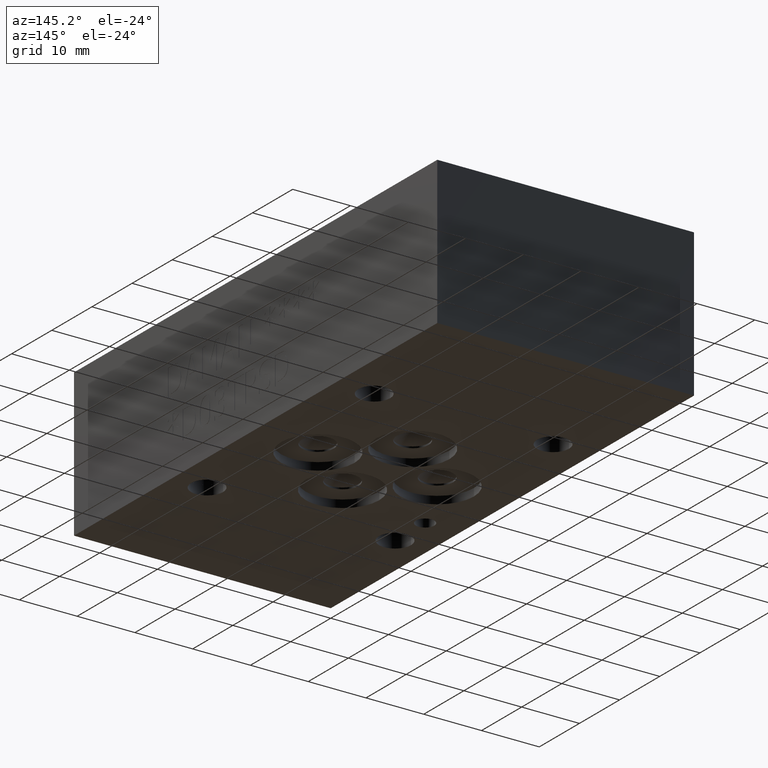
[diagram: clean part render]
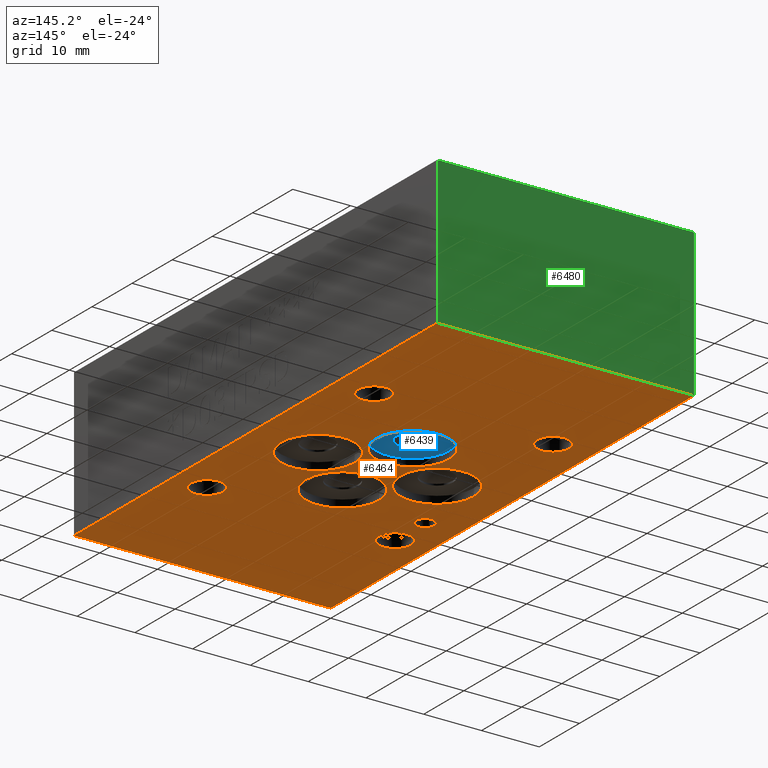
[diagram: same view with three faces highlighted in distinct colors, each labeled with its STEP entity id]
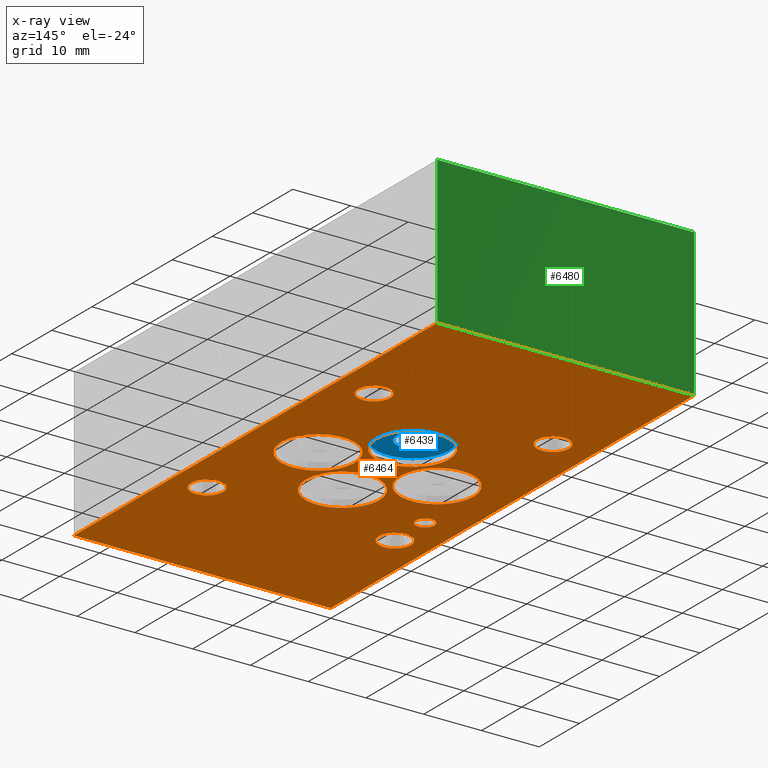
[diagram: x-ray of the same camera — body ghosted, the three highlighted faces saturated]
A machine part, auxiliary view with three faces highlighted in distinct colors.
The next image is the same camera in x-ray (body ghosted, the three faces saturated) — at least one of them is partly hidden behind the body in this view.
Their STEP definitions:

[orange] entity #6464 — the highlighted planar face has unit normal (0, 0, 1).
#28=CIRCLE('',#6707,6.35);
#31=CIRCLE('',#6712,6.35);
#34=CIRCLE('',#6717,6.35);
#37=CIRCLE('',#6722,6.35);
#41=CIRCLE('',#6729,1.5875);
#46=CIRCLE('',#6739,2.7686);
#49=CIRCLE('',#6744,2.7686);
#52=CIRCLE('',#6749,2.7686);
#55=CIRCLE('',#6754,2.7686);
#58=CIRCLE('',#6763,2.7686);
#59=CIRCLE('',#6764,2.7686);
#60=CIRCLE('',#6765,2.7686);
#61=CIRCLE('',#6766,2.7686);
#126=FACE_BOUND('',#1028,.T.);
#127=FACE_BOUND('',#1029,.T.);
#128=FACE_BOUND('',#1030,.T.);
#129=FACE_BOUND('',#1031,.T.);
#130=FACE_BOUND('',#1032,.T.);
#131=FACE_BOUND('',#1033,.T.);
#132=FACE_BOUND('',#1034,.T.);
#133=FACE_BOUND('',#1035,.T.);
#134=FACE_BOUND('',#1036,.T.);
#353=PLANE('',#6762);
#669=FACE_OUTER_BOUND('',#1027,.T.);
#1027=EDGE_LOOP('',(#5685,#5686,#5687,#5688));
#1028=EDGE_LOOP('',(#5689));
#1029=EDGE_LOOP('',(#5690));
#1030=EDGE_LOOP('',(#5691));
#1031=EDGE_LOOP('',(#5692));
#1032=EDGE_LOOP('',(#5693));
#1033=EDGE_LOOP('',(#5694,#5695));
#1034=EDGE_LOOP('',(#5696,#5697));
#1035=EDGE_LOOP('',(#5698,#5699));
#1036=EDGE_LOOP('',(#5700,#5701));
#1310=LINE('',#9779,#1980);
#1713=LINE('',#10893,#2383);
#1714=LINE('',#10895,#2384);
#1715=LINE('',#10896,#2385);
#1980=VECTOR('',#7181,10.);
#2383=VECTOR('',#7974,10.);
#2384=VECTOR('',#7975,10.);
#2385=VECTOR('',#7976,10.);
#2825=VERTEX_POINT('',#9777);
#2826=VERTEX_POINT('',#9778);
#3091=VERTEX_POINT('',#10691);
#3094=VERTEX_POINT('',#10700);
#3097=VERTEX_POINT('',#10709);
#3100=VERTEX_POINT('',#10718);
#3105=VERTEX_POINT('',#10732);
#3111=VERTEX_POINT('',#10751);
#3114=VERTEX_POINT('',#10757);
#3116=VERTEX_POINT('',#10783);
#3119=VERTEX_POINT('',#10789);
#3121=VERTEX_POINT('',#10815);
#3124=VERTEX_POINT('',#10821);
#3126=VERTEX_POINT('',#10847);
#3129=VERTEX_POINT('',#10853);
#3134=VERTEX_POINT('',#10892);
#3135=VERTEX_POINT('',#10894);
#3544=EDGE_CURVE('',#2825,#2826,#1310,.T.);
#3941=EDGE_CURVE('',#3091,#3091,#28,.T.);
#3945=EDGE_CURVE('',#3094,#3094,#31,.T.);
#3949=EDGE_CURVE('',#3097,#3097,#34,.T.);
#3953=EDGE_CURVE('',#3100,#3100,#37,.T.);
#3959=EDGE_CURVE('',#3105,#3105,#41,.T.);
#3971=EDGE_CURVE('',#3111,#3114,#46,.T.);
#3977=EDGE_CURVE('',#3116,#3119,#49,.T.);
#3983=EDGE_CURVE('',#3121,#3124,#52,.T.);
#3989=EDGE_CURVE('',#3126,#3129,#55,.T.);
#3997=EDGE_CURVE('',#3134,#2825,#1713,.T.);
#3998=EDGE_CURVE('',#3135,#3134,#1714,.T.);
#3999=EDGE_CURVE('',#2826,#3135,#1715,.T.);
#4000=EDGE_CURVE('',#3119,#3116,#58,.T.);
#4001=EDGE_CURVE('',#3129,#3126,#59,.T.);
#4002=EDGE_CURVE('',#3114,#3111,#60,.T.);
#4003=EDGE_CURVE('',#3124,#3121,#61,.T.);
#5685=ORIENTED_EDGE('',*,*,#3997,.F.);
#5686=ORIENTED_EDGE('',*,*,#3998,.F.);
#5687=ORIENTED_EDGE('',*,*,#3999,.F.);
#5688=ORIENTED_EDGE('',*,*,#3544,.F.);
#5689=ORIENTED_EDGE('',*,*,#3941,.T.);
#5690=ORIENTED_EDGE('',*,*,#3945,.T.);
#5691=ORIENTED_EDGE('',*,*,#3949,.T.);
#5692=ORIENTED_EDGE('',*,*,#3953,.T.);
#5693=ORIENTED_EDGE('',*,*,#3959,.T.);
#5694=ORIENTED_EDGE('',*,*,#3977,.T.);
#5695=ORIENTED_EDGE('',*,*,#4000,.T.);
#5696=ORIENTED_EDGE('',*,*,#3989,.T.);
#5697=ORIENTED_EDGE('',*,*,#4001,.T.);
#5698=ORIENTED_EDGE('',*,*,#3971,.T.);
#5699=ORIENTED_EDGE('',*,*,#4002,.T.);
#5700=ORIENTED_EDGE('',*,*,#3983,.T.);
#5701=ORIENTED_EDGE('',*,*,#4003,.T.);
#6464=ADVANCED_FACE('',(#669,#126,#127,#128,#129,#130,#131,#132,#133,#134),
#353,.F.);
#6707=AXIS2_PLACEMENT_3D('',#10692,#7840,#7841);
#6712=AXIS2_PLACEMENT_3D('',#10701,#7851,#7852);
#6717=AXIS2_PLACEMENT_3D('',#10710,#7862,#7863);
#6722=AXIS2_PLACEMENT_3D('',#10719,#7873,#7874);
#6729=AXIS2_PLACEMENT_3D('',#10733,#7889,#7890);
#6739=AXIS2_PLACEMENT_3D('',#10759,#7916,#7917);
#6744=AXIS2_PLACEMENT_3D('',#10791,#7928,#7929);
#6749=AXIS2_PLACEMENT_3D('',#10823,#7940,#7941);
#6754=AXIS2_PLACEMENT_3D('',#10855,#7952,#7953);
#6762=AXIS2_PLACEMENT_3D('',#10891,#7972,#7973);
#6763=AXIS2_PLACEMENT_3D('',#10897,#7977,#7978);
#6764=AXIS2_PLACEMENT_3D('',#10898,#7979,#7980);
#6765=AXIS2_PLACEMENT_3D('',#10899,#7981,#7982);
#6766=AXIS2_PLACEMENT_3D('',#10900,#7983,#7984);
#7181=DIRECTION('',(0.,1.,0.));
#7840=DIRECTION('center_axis',(0.,0.,1.));
#7841=DIRECTION('ref_axis',(1.,0.,0.));
#7851=DIRECTION('center_axis',(0.,0.,1.));
#7852=DIRECTION('ref_axis',(1.,0.,0.));
#7862=DIRECTION('center_axis',(0.,0.,1.));
#7863=DIRECTION('ref_axis',(1.,0.,0.));
#7873=DIRECTION('center_axis',(0.,0.,1.));
#7874=DIRECTION('ref_axis',(1.,0.,0.));
#7889=DIRECTION('center_axis',(0.,0.,1.));
#7890=DIRECTION('ref_axis',(1.,0.,0.));
#7916=DIRECTION('center_axis',(0.,0.,1.));
#7917=DIRECTION('ref_axis',(1.,0.,0.));
#7928=DIRECTION('center_axis',(0.,0.,1.));
#7929=DIRECTION('ref_axis',(1.,0.,0.));
#7940=DIRECTION('center_axis',(0.,0.,1.));
#7941=DIRECTION('ref_axis',(1.,0.,0.));
#7952=DIRECTION('center_axis',(0.,0.,1.));
#7953=DIRECTION('ref_axis',(1.,0.,0.));
#7972=DIRECTION('center_axis',(0.,0.,1.));
#7973=DIRECTION('ref_axis',(1.,0.,0.));
#7974=DIRECTION('',(1.,0.,0.));
#7975=DIRECTION('',(0.,-1.,0.));
#7976=DIRECTION('',(-1.,0.,0.));
#7977=DIRECTION('center_axis',(0.,0.,1.));
#7978=DIRECTION('ref_axis',(1.,0.,0.));
#7979=DIRECTION('center_axis',(0.,0.,1.));
#7980=DIRECTION('ref_axis',(1.,0.,0.));
#7981=DIRECTION('center_axis',(0.,0.,1.));
#7982=DIRECTION('ref_axis',(1.,0.,0.));
#7983=DIRECTION('center_axis',(0.,0.,1.));
#7984=DIRECTION('ref_axis',(1.,0.,0.));
#9777=CARTESIAN_POINT('',(44.45,0.,0.));
#9778=CARTESIAN_POINT('',(44.45,90.5002,0.));
#9779=CARTESIAN_POINT('',(44.45,0.,0.));
#10691=CARTESIAN_POINT('',(15.875,52.39385,0.));
#10692=CARTESIAN_POINT('Origin',(22.225,52.39385,0.));
#10700=CARTESIAN_POINT('',(5.5626,43.65625,0.));
#10701=CARTESIAN_POINT('Origin',(11.9126,43.65625,0.));
#10709=CARTESIAN_POINT('',(26.2128,43.65625,0.));
#10710=CARTESIAN_POINT('Origin',(32.5628,43.65625,0.));
#10718=CARTESIAN_POINT('',(15.875,34.91865,0.));
#10719=CARTESIAN_POINT('Origin',(22.225,34.91865,0.));
#10732=CARTESIAN_POINT('',(4.3815,32.09925,0.));
#10733=CARTESIAN_POINT('Origin',(5.969,32.09925,0.));
#10751=CARTESIAN_POINT('',(35.7378045513047,24.611012491649,0.));
#10757=CARTESIAN_POINT('',(41.2749954486953,24.607837508351,0.));
#10759=CARTESIAN_POINT('Origin',(38.5064,24.60625,0.));
#10783=CARTESIAN_POINT('',(3.98780455130474,65.098612491649,0.));
#10789=CARTESIAN_POINT('',(9.52499544869526,65.095437508351,0.));
#10791=CARTESIAN_POINT('Origin',(6.7564,65.09385,0.));
#10815=CARTESIAN_POINT('',(34.9504045513047,65.098612491649,0.));
#10821=CARTESIAN_POINT('',(40.4875954486953,65.095437508351,0.));
#10823=CARTESIAN_POINT('Origin',(37.719,65.09385,0.));
#10847=CARTESIAN_POINT('',(3.20040455130474,24.611012491649,0.));
#10853=CARTESIAN_POINT('',(8.73759544869526,24.607837508351,0.));
#10855=CARTESIAN_POINT('Origin',(5.969,24.60625,0.));
#10891=CARTESIAN_POINT('Origin',(22.225,45.2501,0.));
#10892=CARTESIAN_POINT('',(0.,0.,0.));
#10893=CARTESIAN_POINT('',(0.,0.,0.));
#10894=CARTESIAN_POINT('',(0.,90.5002,0.));
#10895=CARTESIAN_POINT('',(0.,90.5002,0.));
#10896=CARTESIAN_POINT('',(44.45,90.5002,0.));
#10897=CARTESIAN_POINT('Origin',(6.7564,65.1002,0.));
#10898=CARTESIAN_POINT('Origin',(5.969,24.6126,0.));
#10899=CARTESIAN_POINT('Origin',(38.5064,24.6126,0.));
#10900=CARTESIAN_POINT('Origin',(37.719,65.1002,0.));

[blue] entity #6439 — the highlighted planar face has unit normal (0, 0, -1).
#29=CIRCLE('',#6708,6.35);
#30=CIRCLE('',#6710,2.7686);
#122=FACE_BOUND('',#999,.T.);
#349=PLANE('',#6709);
#644=FACE_OUTER_BOUND('',#998,.T.);
#998=EDGE_LOOP('',(#5602));
#999=EDGE_LOOP('',(#5603));
#3092=VERTEX_POINT('',#10693);
#3093=VERTEX_POINT('',#10697);
#3943=EDGE_CURVE('',#3092,#3092,#29,.T.);
#3944=EDGE_CURVE('',#3093,#3093,#30,.T.);
#5602=ORIENTED_EDGE('',*,*,#3943,.T.);
#5603=ORIENTED_EDGE('',*,*,#3944,.F.);
#6439=ADVANCED_FACE('',(#644,#122),#349,.T.);
#6708=AXIS2_PLACEMENT_3D('',#10695,#7843,#7844);
#6709=AXIS2_PLACEMENT_3D('',#10696,#7845,#7846);
#6710=AXIS2_PLACEMENT_3D('',#10698,#7847,#7848);
#7843=DIRECTION('center_axis',(0.,0.,-1.));
#7844=DIRECTION('ref_axis',(1.,0.,0.));
#7845=DIRECTION('center_axis',(0.,0.,-1.));
#7846=DIRECTION('ref_axis',(1.,0.,0.));
#7847=DIRECTION('center_axis',(0.,0.,-1.));
#7848=DIRECTION('ref_axis',(1.,0.,0.));
#10693=CARTESIAN_POINT('',(15.875,52.39385,1.3208));
#10695=CARTESIAN_POINT('Origin',(22.225,52.39385,1.3208));
#10696=CARTESIAN_POINT('Origin',(22.225,52.39385,1.3208));
#10697=CARTESIAN_POINT('',(19.4564,52.39385,1.3208));
#10698=CARTESIAN_POINT('Origin',(22.225,52.39385,1.3208));

[green] entity #6480 — the highlighted planar face has unit normal (0, 1, 0).
#355=PLANE('',#6796);
#685=FACE_OUTER_BOUND('',#1052,.T.);
#1052=EDGE_LOOP('',(#5773,#5774,#5775,#5776));
#1311=LINE('',#9781,#1981);
#1715=LINE('',#10896,#2385);
#1732=LINE('',#10967,#2402);
#1733=LINE('',#10969,#2403);
#1981=VECTOR('',#7182,10.);
#2385=VECTOR('',#7976,10.);
#2402=VECTOR('',#8059,10.);
#2403=VECTOR('',#8062,10.);
#2826=VERTEX_POINT('',#9778);
#2827=VERTEX_POINT('',#9780);
#3135=VERTEX_POINT('',#10894);
#3156=VERTEX_POINT('',#10965);
#3545=EDGE_CURVE('',#2826,#2827,#1311,.T.);
#3999=EDGE_CURVE('',#2826,#3135,#1715,.T.);
#4034=EDGE_CURVE('',#3135,#3156,#1732,.T.);
#4035=EDGE_CURVE('',#2827,#3156,#1733,.T.);
#5773=ORIENTED_EDGE('',*,*,#3999,.T.);
#5774=ORIENTED_EDGE('',*,*,#4034,.T.);
#5775=ORIENTED_EDGE('',*,*,#4035,.F.);
#5776=ORIENTED_EDGE('',*,*,#3545,.F.);
#6480=ADVANCED_FACE('',(#685),#355,.T.);
#6796=AXIS2_PLACEMENT_3D('',#10968,#8060,#8061);
#7182=DIRECTION('',(0.,0.,1.));
#7976=DIRECTION('',(-1.,0.,0.));
#8059=DIRECTION('',(0.,0.,1.));
#8060=DIRECTION('center_axis',(0.,1.,0.));
#8061=DIRECTION('ref_axis',(-1.,0.,0.));
#8062=DIRECTION('',(-1.,0.,0.));
#9778=CARTESIAN_POINT('',(44.45,90.5002,0.));
#9780=CARTESIAN_POINT('',(44.45,90.5002,25.4));
#9781=CARTESIAN_POINT('',(44.45,90.5002,0.));
#10894=CARTESIAN_POINT('',(0.,90.5002,0.));
#10896=CARTESIAN_POINT('',(44.45,90.5002,0.));
#10965=CARTESIAN_POINT('',(0.,90.5002,25.4));
#10967=CARTESIAN_POINT('',(0.,90.5002,0.));
#10968=CARTESIAN_POINT('Origin',(44.45,90.5002,0.));
#10969=CARTESIAN_POINT('',(44.45,90.5002,25.4));